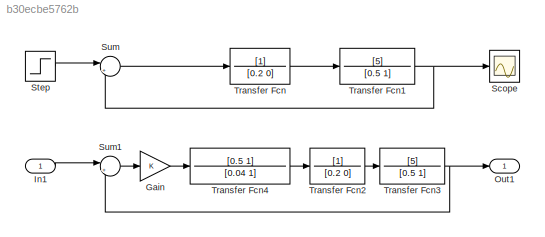
MODEL slx_b30ecbe5762b
KIND model
CONFIG AbsTol = auto
CONFIG EnableMultiTasking = off
CONFIG FixedStep = auto
CONFIG MaxStep = auto
CONFIG MinStep = auto
CONFIG RelTol = 1e-3
CONFIG SampleTimeConstraint = Unconstrained
CONFIG SolverName = VariableStepAuto
CONFIG StartTime = 0.0
CONFIG StopTime = 2
WORKSPACE source: mxarray member
WORKSPACE Kc: Simulink.Parameter (value not decoded)
WORKSPACE a: Simulink.Parameter (value not decoded)
BLOCK [Gain] Gain
BLOCK [Inport] In1
BLOCK [Outport] Out1
BLOCK [Scope] Scope
  Floating = off
  NumInputPorts = 1
  ScopeSpecificationString = Simulink.scopes.TimeScopeBlockCfg('CurrentConfiguration', extmgr.ConfigurationSet(extmgr.Configuration('Core','General UI',true),extmgr.Configuration('Core','Source UI',true),extmgr.Configuration('Sources','WiredSimulink',true),extmgr.Configuration('Visuals','Time Domain',true,'SerializedDisplays',{struct('MinYLimReal','-0.72617','MaxYLimReal','6.53554','YLabelReal','','MinYLimMag','0.00000','MaxY...<+1495ch>
BLOCK [Step] Step
  After = 5
  SampleTime = 0
BLOCK [Sum] Sum
  Inputs = |+-
BLOCK [Sum] Sum1
  Inputs = |+-
BLOCK [TransferFcn] Transfer Fcn
  Denominator = [0.2 0]
BLOCK [TransferFcn] Transfer Fcn1
  Denominator = [0.5 1]
  Numerator = [5]
BLOCK [TransferFcn] Transfer Fcn2
  Denominator = [0.2 0]
BLOCK [TransferFcn] Transfer Fcn3
  Denominator = [0.5 1]
  Numerator = [5]
BLOCK [TransferFcn] Transfer Fcn4
  Denominator = [0.04 1]
  Numerator = [0.5 1]
LINE Gain:1 -> Transfer Fcn4:1
LINE In1:1 -> Sum1:1
LINE Step:1 -> Sum:1
LINE Sum1:1 -> Gain:1
LINE Sum:1 -> Transfer Fcn:1
NET Transfer Fcn1:1 -> Scope:1, Sum:2
LINE Transfer Fcn2:1 -> Transfer Fcn3:1
NET Transfer Fcn3:1 -> Out1:1, Sum1:2
LINE Transfer Fcn4:1 -> Transfer Fcn2:1
LINE Transfer Fcn:1 -> Transfer Fcn1:1
note: NET lines group one-source signal fan-out (src -> all destinations, sorted); 1:1 wires keep LINE
